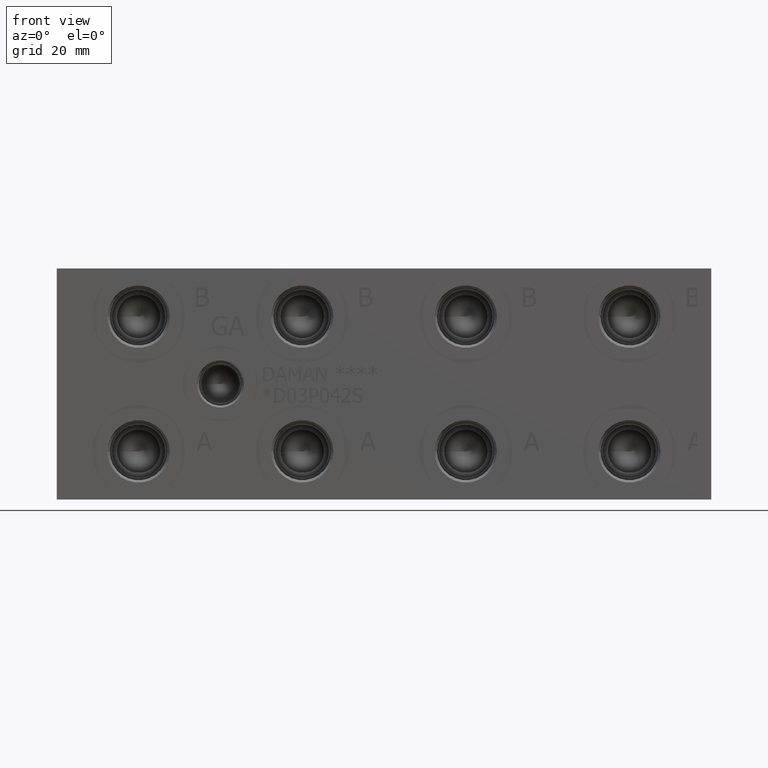
[diagram: clean part render]
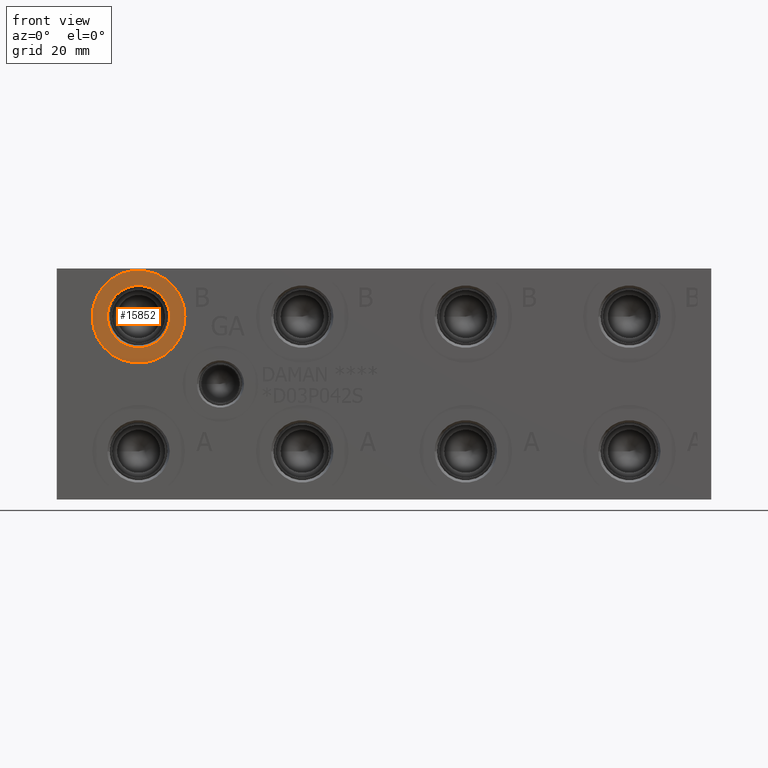
[diagram: same view with one face highlighted and labeled with its STEP entity id]
A machine part, front view. The second image highlights one B-rep face of the part: STEP entity #15852.
In plain terms, the highlighted planar face has unit normal (0, 1, 0).
Its self-contained STEP definition (entity closure, byte-faithful):
#608=CIRCLE('',#16888,15.3162);
#609=CIRCLE('',#16889,15.3162);
#610=CIRCLE('',#16891,10.2997);
#611=CIRCLE('',#16892,10.2997);
#813=FACE_BOUND('',#3094,.T.);
#2157=FACE_OUTER_BOUND('',#3093,.T.);
#3093=EDGE_LOOP('',(#13701,#13702));
#3094=EDGE_LOOP('',(#13703,#13704));
#7400=VERTEX_POINT('',#27259);
#7401=VERTEX_POINT('',#27261);
#7402=VERTEX_POINT('',#27265);
#7403=VERTEX_POINT('',#27266);
#9558=EDGE_CURVE('',#7400,#7401,#608,.T.);
#9559=EDGE_CURVE('',#7401,#7400,#609,.T.);
#9560=EDGE_CURVE('',#7402,#7403,#610,.T.);
#9561=EDGE_CURVE('',#7403,#7402,#611,.T.);
#13701=ORIENTED_EDGE('',*,*,#9559,.F.);
#13702=ORIENTED_EDGE('',*,*,#9558,.F.);
#13703=ORIENTED_EDGE('',*,*,#9560,.T.);
#13704=ORIENTED_EDGE('',*,*,#9561,.T.);
#14544=PLANE('',#16890);
#15852=ADVANCED_FACE('',(#2157,#813),#14544,.F.);
#16888=AXIS2_PLACEMENT_3D('',#27262,#20277,#20278);
#16889=AXIS2_PLACEMENT_3D('',#27263,#20279,#20280);
#16890=AXIS2_PLACEMENT_3D('',#27264,#20281,#20282);
#16891=AXIS2_PLACEMENT_3D('',#27267,#20283,#20284);
#16892=AXIS2_PLACEMENT_3D('',#27268,#20285,#20286);
#20277=DIRECTION('center_axis',(0.,1.,0.));
#20278=DIRECTION('ref_axis',(1.,0.,0.));
#20279=DIRECTION('center_axis',(0.,1.,0.));
#20280=DIRECTION('ref_axis',(1.,0.,0.));
#20281=DIRECTION('center_axis',(0.,1.,0.));
#20282=DIRECTION('ref_axis',(0.,0.,1.));
#20283=DIRECTION('center_axis',(0.,1.,0.));
#20284=DIRECTION('ref_axis',(1.,0.,0.));
#20285=DIRECTION('center_axis',(0.,1.,0.));
#20286=DIRECTION('ref_axis',(1.,0.,0.));
#27259=CARTESIAN_POINT('',(11.6586,0.7874,60.325));
#27261=CARTESIAN_POINT('',(42.291,0.7874,60.325));
#27262=CARTESIAN_POINT('Origin',(26.9748,0.7874,60.325));
#27263=CARTESIAN_POINT('Origin',(26.9748,0.7874,60.325));
#27264=CARTESIAN_POINT('Origin',(37.2745,0.7874,60.325));
#27265=CARTESIAN_POINT('',(37.2745,0.7874,60.325));
#27266=CARTESIAN_POINT('',(16.6751,0.787399999999999,60.325));
#27267=CARTESIAN_POINT('Origin',(26.9748,0.7874,60.325));
#27268=CARTESIAN_POINT('Origin',(26.9748,0.7874,60.325));